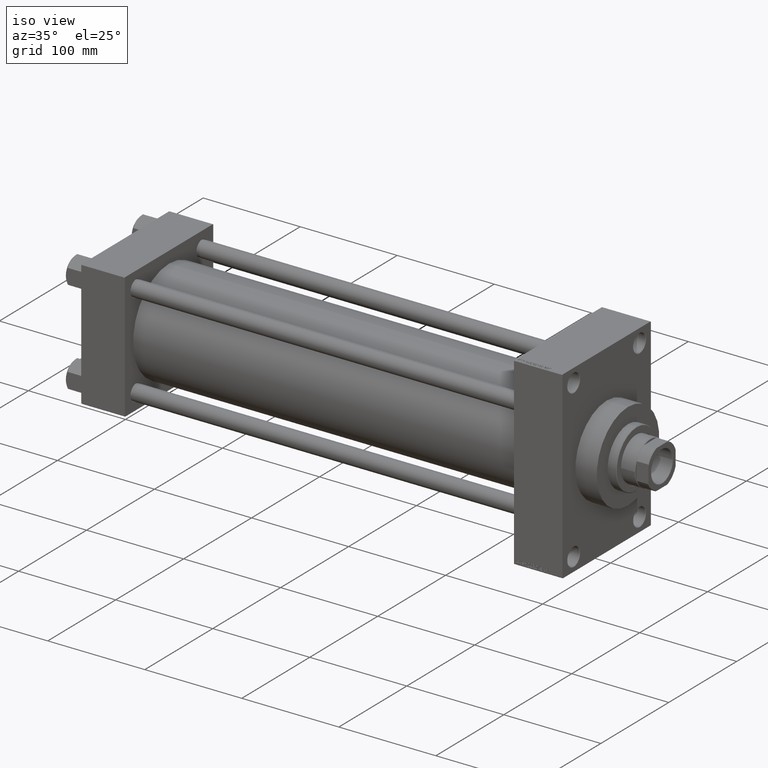
[diagram: clean part render]
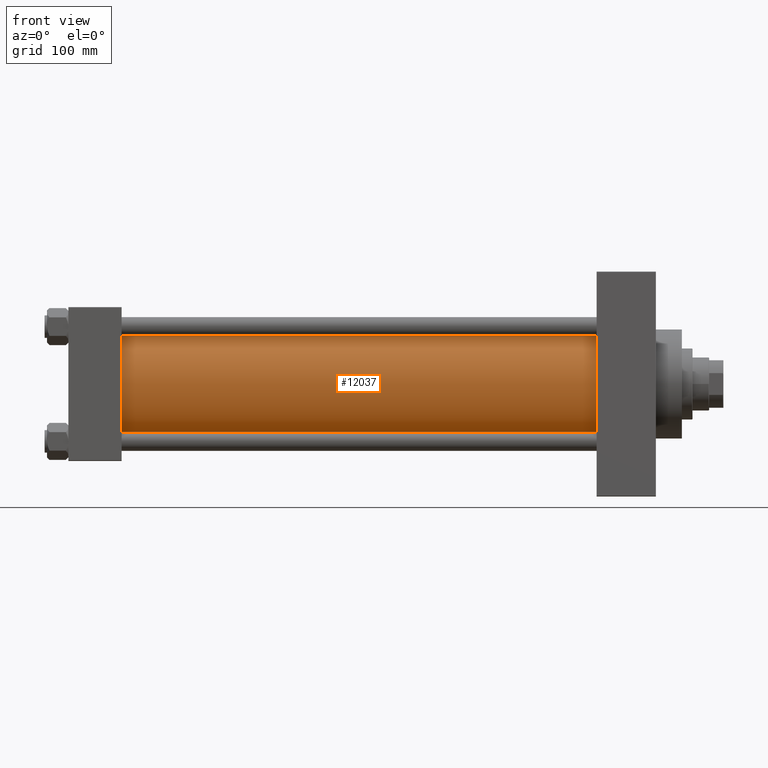
[diagram: tour spotlight — one face highlighted and labeled with its STEP entity id]
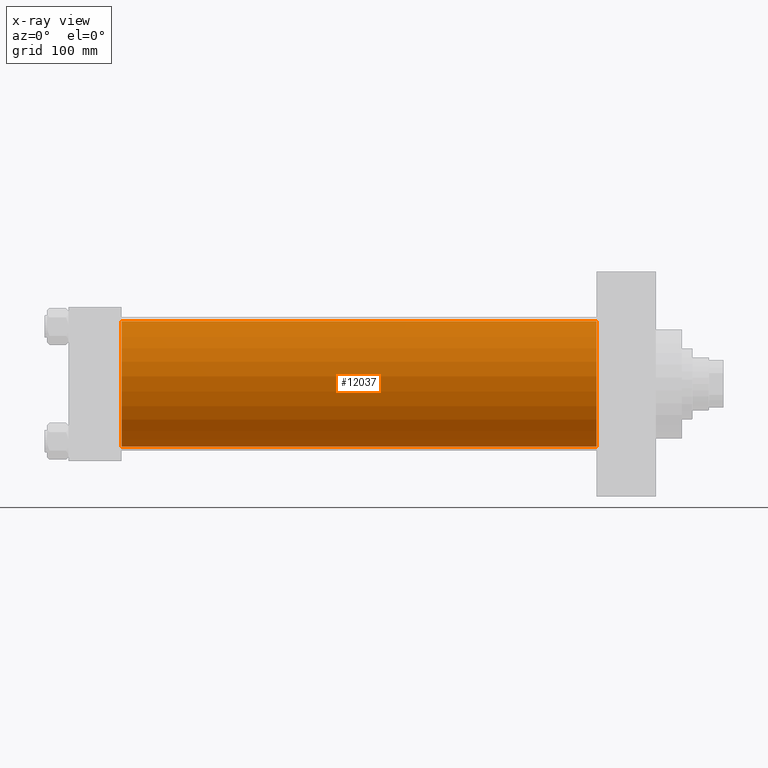
[diagram: x-ray of the same camera — body ghosted, this tour face saturated]
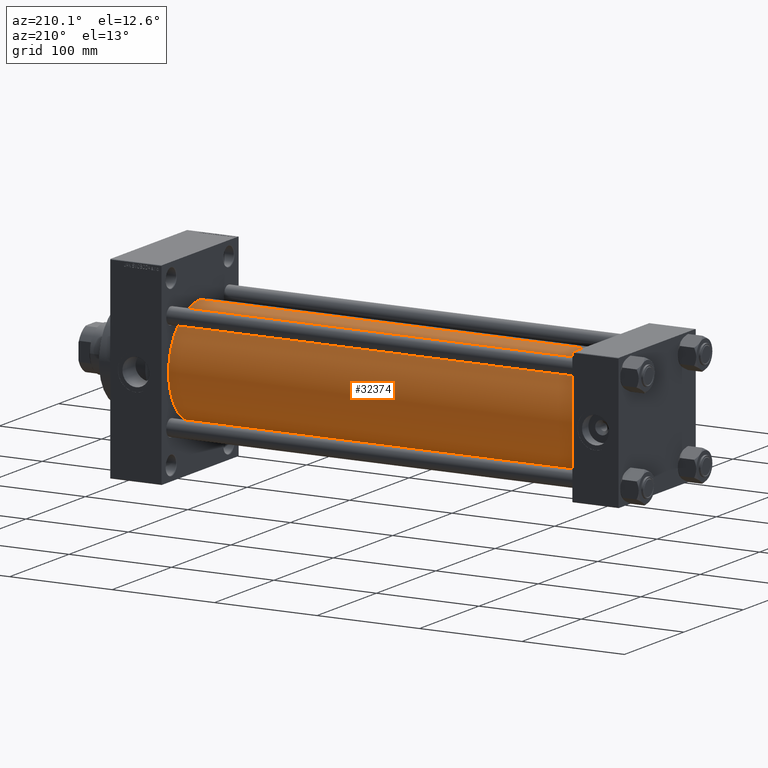
[diagram: tour spotlight — one face highlighted and labeled with its STEP entity id]
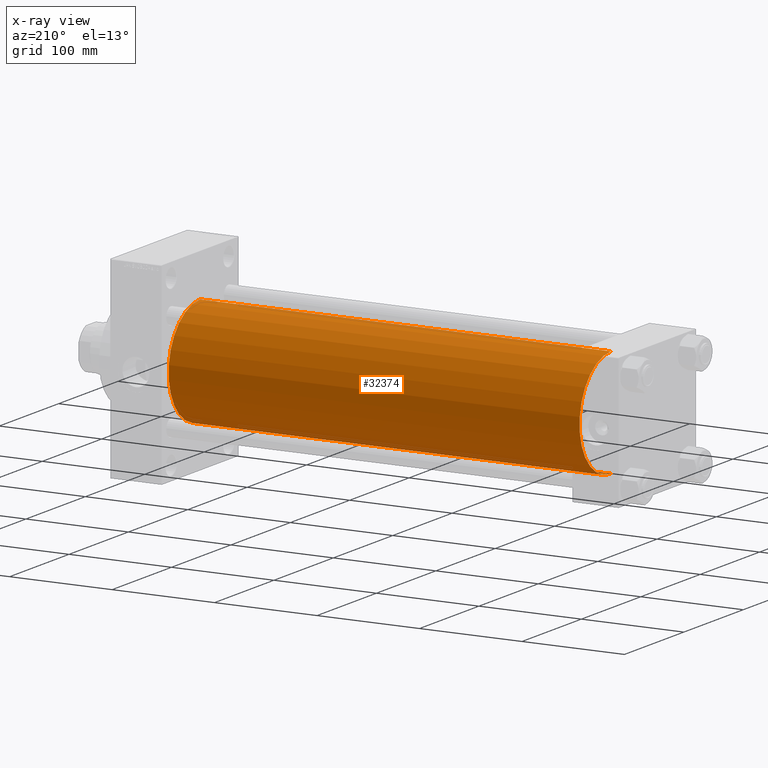
[diagram: x-ray of the same camera — body ghosted, this tour face saturated]
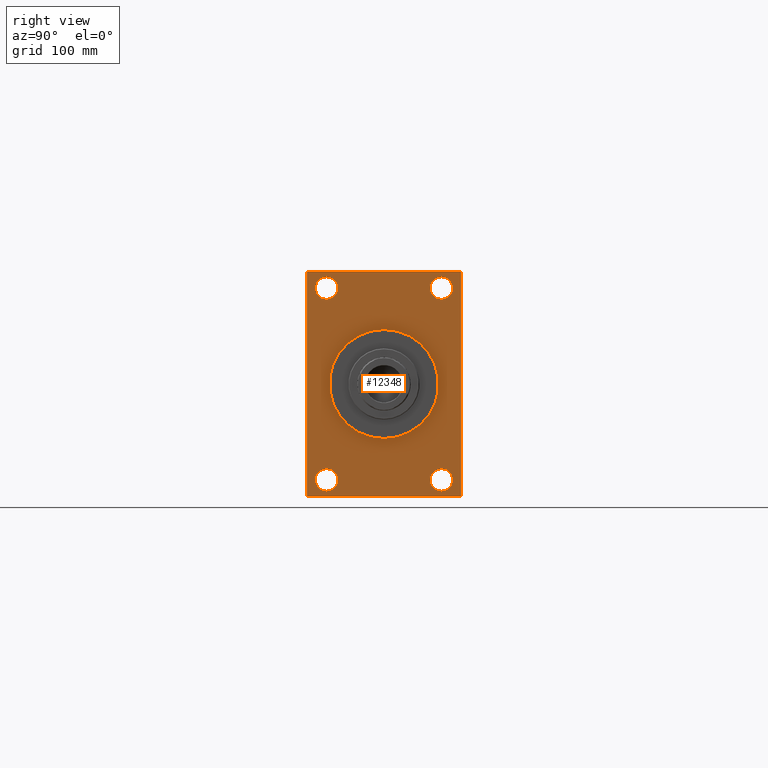
[diagram: tour spotlight — one face highlighted and labeled with its STEP entity id]
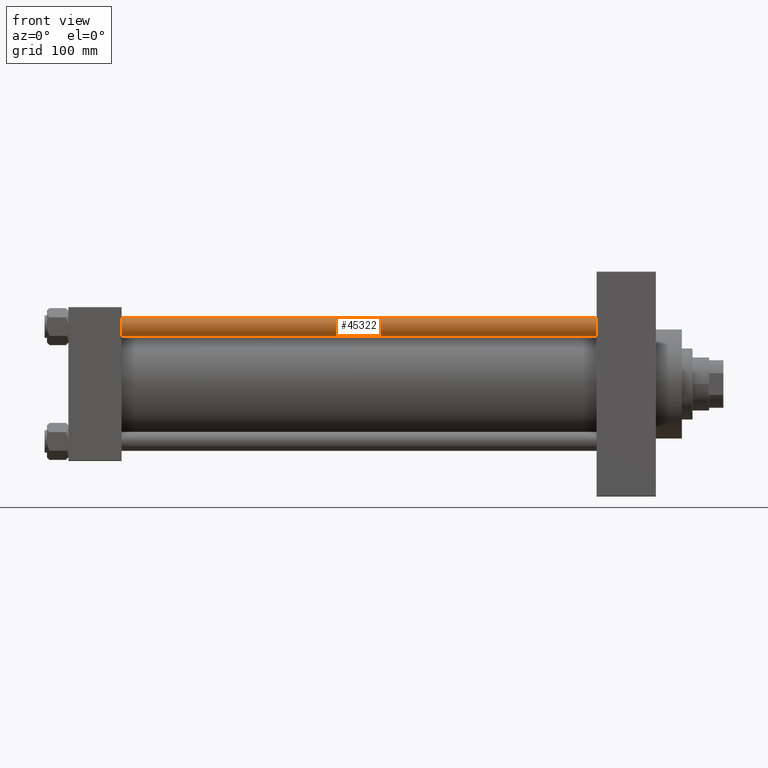
[diagram: tour spotlight — one face highlighted and labeled with its STEP entity id]
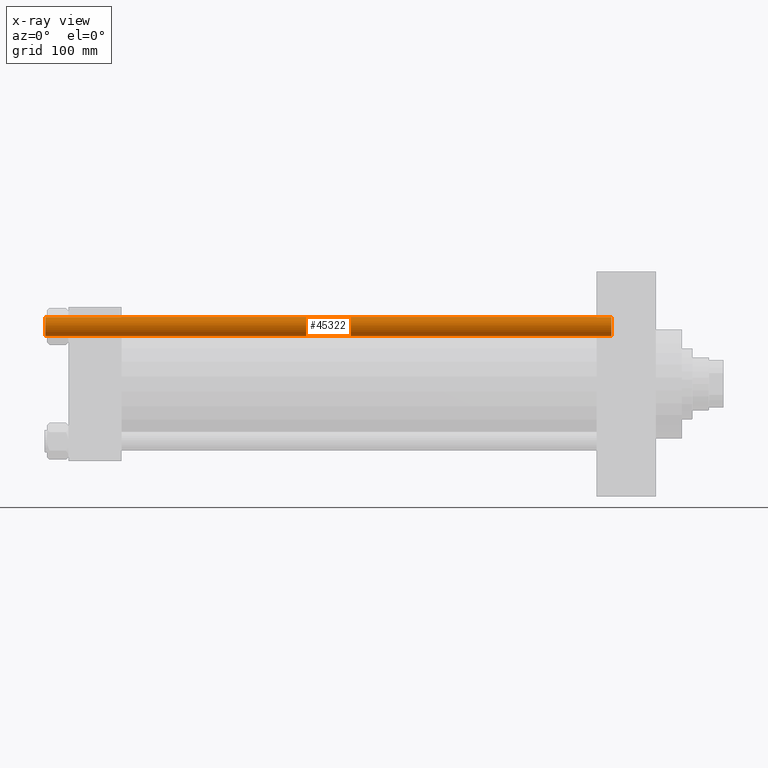
[diagram: x-ray of the same camera — body ghosted, this tour face saturated]
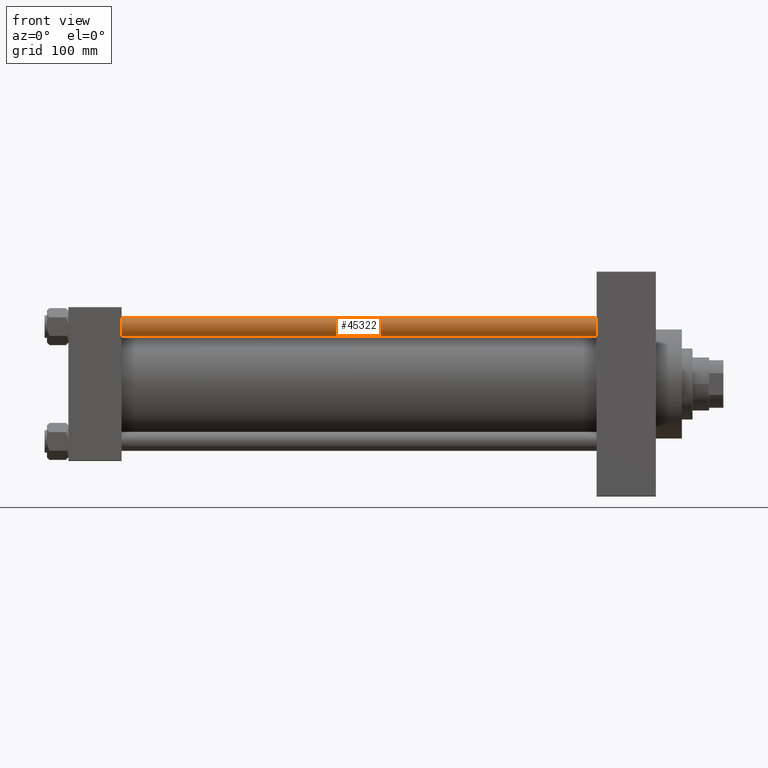
[diagram: tour spotlight — one face highlighted and labeled with its STEP entity id]
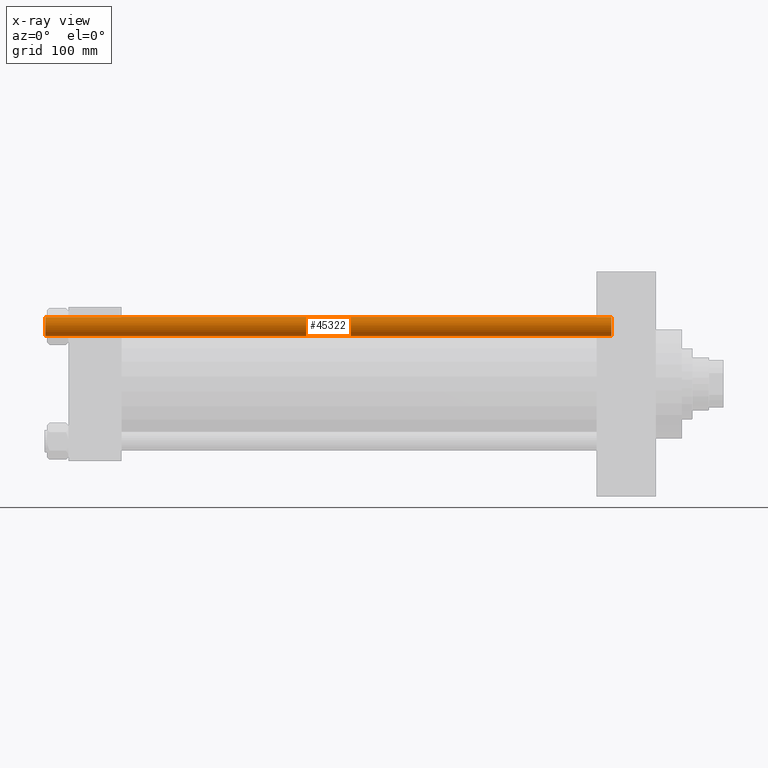
[diagram: x-ray of the same camera — body ghosted, this tour face saturated]
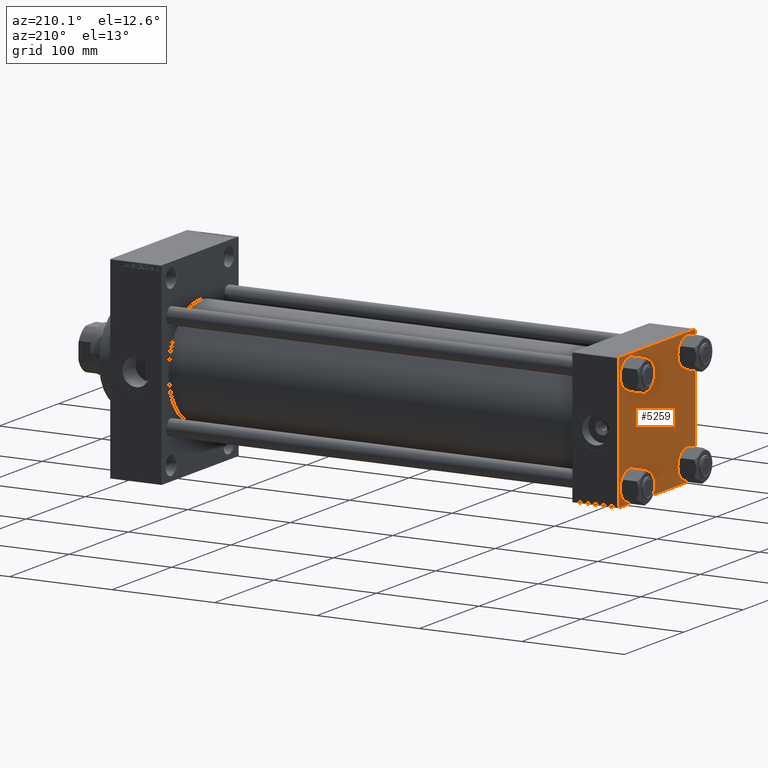
[diagram: tour spotlight — one face highlighted and labeled with its STEP entity id]
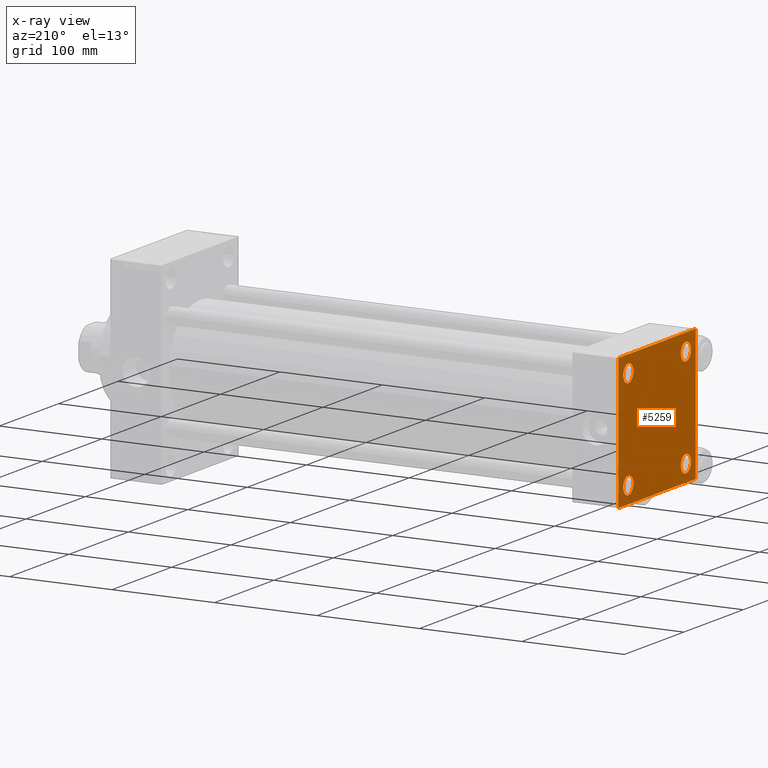
[diagram: x-ray of the same camera — body ghosted, this tour face saturated]
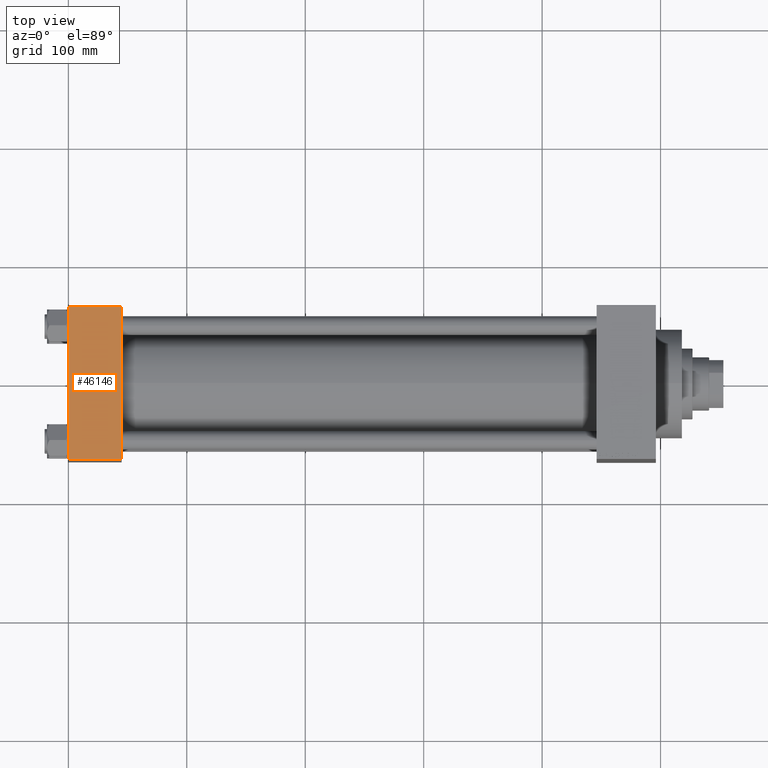
[diagram: tour spotlight — one face highlighted and labeled with its STEP entity id]
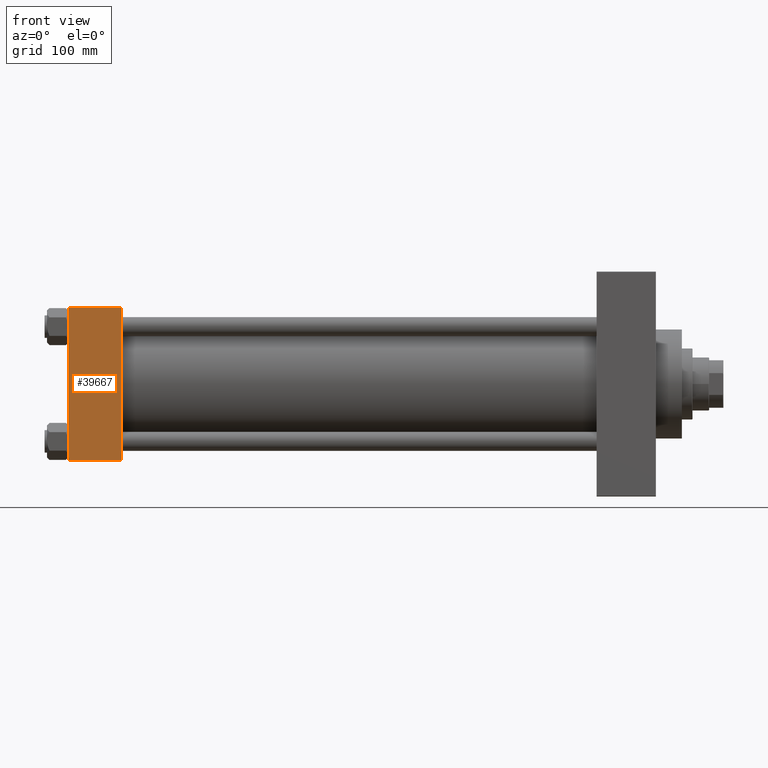
[diagram: tour spotlight — one face highlighted and labeled with its STEP entity id]
A machine part: a face-by-face anatomy tour. The part has 1152 B-rep faces; the first image is the clean iso view, then the 8 largest visible faces are spotlighted one at a time (largest first), each with its STEP entity span.

Face 1 — front view, entity #12037. An x-ray twin of the same camera follows (body ghosted, this face saturated) — the face is partly hidden behind the body. In plain terms, the highlighted cylindrical surface (partial cylindrical patch) has radius 53 mm, axis along (-1, -0, -0).
Definition (entity closure, byte-faithful):
#1668 = DIRECTION ( 'NONE',  ( -1.000000000000000000, -0.000000000000000000, -0.000000000000000000 ) ) ;
#3227 = CYLINDRICAL_SURFACE ( 'NONE', #38274, 53.00000000000000711 ) ;
#3472 = FACE_OUTER_BOUND ( 'NONE', #19214, .T. ) ;
#4217 = CARTESIAN_POINT ( 'NONE',  ( 446.0000000000000000, -2.602085213965210642E-15, 53.00000000000000711 ) ) ;
#6288 = EDGE_CURVE ( 'NONE', #19198, #28979, #31957, .T. ) ;
#6498 = AXIS2_PLACEMENT_3D ( 'NONE', #39335, #43195, #25105 ) ;
#6776 = CIRCLE ( 'NONE', #12182, 53.00000000000000711 ) ;
#8379 = EDGE_CURVE ( 'NONE', #28979, #27550, #21911, .T. ) ;
#11543 = CARTESIAN_POINT ( 'NONE',  ( 446.0000000000000000, -2.602085213965210642E-15, 0.000000000000000000 ) ) ;
#11733 = ORIENTED_EDGE ( 'NONE', *, *, #38024, .F. ) ;
#12037 = ADVANCED_FACE ( 'NONE', ( #3472 ), #3227, .T. ) ;
#12182 = AXIS2_PLACEMENT_3D ( 'NONE', #11543, #22610, #26465 ) ;
#12939 = CARTESIAN_POINT ( 'NONE',  ( 446.0000000000000000, -2.602085213965210642E-15, 53.00000000000000711 ) ) ;
#14083 = CARTESIAN_POINT ( 'NONE',  ( 446.0000000000000000, -2.602085213965210642E-15, 0.000000000000000000 ) ) ;
#14797 = DIRECTION ( 'NONE',  ( 0.000000000000000000, 0.000000000000000000, 1.000000000000000000 ) ) ;
#19198 = VERTEX_POINT ( 'NONE', #4217 ) ;
#19214 = EDGE_LOOP ( 'NONE', ( #40418, #11733, #34072, #30056 ) ) ;
#20639 = DIRECTION ( 'NONE',  ( -1.000000000000000000, -0.000000000000000000, -0.000000000000000000 ) ) ;
#21911 = CIRCLE ( 'NONE', #6498, 53.00000000000000711 ) ;
#22610 = DIRECTION ( 'NONE',  ( 1.000000000000000000, 0.000000000000000000, 0.000000000000000000 ) ) ;
#25105 = DIRECTION ( 'NONE',  ( 0.000000000000000000, 0.000000000000000000, 1.000000000000000000 ) ) ;
#25646 = DIRECTION ( 'NONE',  ( -1.000000000000000000, -0.000000000000000000, -0.000000000000000000 ) ) ;
#26465 = DIRECTION ( 'NONE',  ( 0.000000000000000000, 0.000000000000000000, -1.000000000000000000 ) ) ;
#27550 = VERTEX_POINT ( 'NONE', #33366 ) ;
#28417 = LINE ( 'NONE', #34693, #41556 ) ;
#28979 = VERTEX_POINT ( 'NONE', #38346 ) ;
#30056 = ORIENTED_EDGE ( 'NONE', *, *, #8379, .T. ) ;
#31932 = CARTESIAN_POINT ( 'NONE',  ( 446.0000000000000000, 3.888542821515760888E-15, -53.00000000000000711 ) ) ;
#31957 = LINE ( 'NONE', #12939, #41097 ) ;
#33366 = CARTESIAN_POINT ( 'NONE',  ( 44.99999999999998579, 3.888542821515760888E-15, -53.00000000000000711 ) ) ;
#34072 = ORIENTED_EDGE ( 'NONE', *, *, #6288, .T. ) ;
#34693 = CARTESIAN_POINT ( 'NONE',  ( 446.0000000000000000, 3.888542821515760888E-15, -53.00000000000000711 ) ) ;
#38024 = EDGE_CURVE ( 'NONE', #19198, #42041, #6776, .T. ) ;
#38274 = AXIS2_PLACEMENT_3D ( 'NONE', #14083, #25646, #14797 ) ;
#38346 = CARTESIAN_POINT ( 'NONE',  ( 44.99999999999998579, -2.602085213965210642E-15, 53.00000000000000711 ) ) ;
#39335 = CARTESIAN_POINT ( 'NONE',  ( 44.99999999999998579, -2.602085213965210642E-15, 0.000000000000000000 ) ) ;
#40418 = ORIENTED_EDGE ( 'NONE', *, *, #47662, .F. ) ;
#41097 = VECTOR ( 'NONE', #20639, 1000.000000000000000 ) ;
#41556 = VECTOR ( 'NONE', #1668, 1000.000000000000000 ) ;
#42041 = VERTEX_POINT ( 'NONE', #31932 ) ;
#43195 = DIRECTION ( 'NONE',  ( 1.000000000000000000, -0.000000000000000000, 0.000000000000000000 ) ) ;
#47662 = EDGE_CURVE ( 'NONE', #42041, #27550, #28417, .T. ) ;

Face 2 — auxiliary view, entity #32374. An x-ray twin of the same camera follows (body ghosted, this face saturated) — the face is partly hidden behind the body. In plain terms, the highlighted cylindrical surface (partial cylindrical patch) has radius 53 mm, axis along (-1, -0, -0).
Definition (entity closure, byte-faithful):
#1062 = DIRECTION ( 'NONE',  ( 0.000000000000000000, 0.000000000000000000, 1.000000000000000000 ) ) ;
#1668 = DIRECTION ( 'NONE',  ( -1.000000000000000000, -0.000000000000000000, -0.000000000000000000 ) ) ;
#4217 = CARTESIAN_POINT ( 'NONE',  ( 446.0000000000000000, -2.602085213965210642E-15, 53.00000000000000711 ) ) ;
#4383 = ORIENTED_EDGE ( 'NONE', *, *, #5472, .T. ) ;
#5472 = EDGE_CURVE ( 'NONE', #27550, #28979, #9499, .T. ) ;
#6288 = EDGE_CURVE ( 'NONE', #19198, #28979, #31957, .T. ) ;
#9499 = CIRCLE ( 'NONE', #27970, 53.00000000000000711 ) ;
#10031 = CARTESIAN_POINT ( 'NONE',  ( 44.99999999999998579, -2.602085213965210642E-15, 0.000000000000000000 ) ) ;
#10268 = DIRECTION ( 'NONE',  ( 1.000000000000000000, -0.000000000000000000, 0.000000000000000000 ) ) ;
#12939 = CARTESIAN_POINT ( 'NONE',  ( 446.0000000000000000, -2.602085213965210642E-15, 53.00000000000000711 ) ) ;
#15520 = FACE_OUTER_BOUND ( 'NONE', #21065, .T. ) ;
#15755 = DIRECTION ( 'NONE',  ( -1.000000000000000000, -0.000000000000000000, -0.000000000000000000 ) ) ;
#15789 = AXIS2_PLACEMENT_3D ( 'NONE', #20494, #38580, #27719 ) ;
#16699 = ORIENTED_EDGE ( 'NONE', *, *, #47662, .T. ) ;
#19198 = VERTEX_POINT ( 'NONE', #4217 ) ;
#19686 = AXIS2_PLACEMENT_3D ( 'NONE', #34076, #15755, #1062 ) ;
#20494 = CARTESIAN_POINT ( 'NONE',  ( 446.0000000000000000, -2.602085213965210642E-15, 0.000000000000000000 ) ) ;
#20639 = DIRECTION ( 'NONE',  ( -1.000000000000000000, -0.000000000000000000, -0.000000000000000000 ) ) ;
#21065 = EDGE_LOOP ( 'NONE', ( #23375, #16699, #4383, #37810 ) ) ;
#23375 = ORIENTED_EDGE ( 'NONE', *, *, #27898, .F. ) ;
#27550 = VERTEX_POINT ( 'NONE', #33366 ) ;
#27719 = DIRECTION ( 'NONE',  ( 0.000000000000000000, 0.000000000000000000, -1.000000000000000000 ) ) ;
#27898 = EDGE_CURVE ( 'NONE', #42041, #19198, #31181, .T. ) ;
#27970 = AXIS2_PLACEMENT_3D ( 'NONE', #10031, #10268, #47386 ) ;
#28417 = LINE ( 'NONE', #34693, #41556 ) ;
#28979 = VERTEX_POINT ( 'NONE', #38346 ) ;
#30228 = CYLINDRICAL_SURFACE ( 'NONE', #19686, 53.00000000000000711 ) ;
#31181 = CIRCLE ( 'NONE', #15789, 53.00000000000000711 ) ;
#31932 = CARTESIAN_POINT ( 'NONE',  ( 446.0000000000000000, 3.888542821515760888E-15, -53.00000000000000711 ) ) ;
#31957 = LINE ( 'NONE', #12939, #41097 ) ;
#32374 = ADVANCED_FACE ( 'NONE', ( #15520 ), #30228, .T. ) ;
#33366 = CARTESIAN_POINT ( 'NONE',  ( 44.99999999999998579, 3.888542821515760888E-15, -53.00000000000000711 ) ) ;
#34076 = CARTESIAN_POINT ( 'NONE',  ( 446.0000000000000000, -2.602085213965210642E-15, 0.000000000000000000 ) ) ;
#34693 = CARTESIAN_POINT ( 'NONE',  ( 446.0000000000000000, 3.888542821515760888E-15, -53.00000000000000711 ) ) ;
#37810 = ORIENTED_EDGE ( 'NONE', *, *, #6288, .F. ) ;
#38346 = CARTESIAN_POINT ( 'NONE',  ( 44.99999999999998579, -2.602085213965210642E-15, 53.00000000000000711 ) ) ;
#38580 = DIRECTION ( 'NONE',  ( 1.000000000000000000, 0.000000000000000000, 0.000000000000000000 ) ) ;
#41097 = VECTOR ( 'NONE', #20639, 1000.000000000000000 ) ;
#41556 = VECTOR ( 'NONE', #1668, 1000.000000000000000 ) ;
#42041 = VERTEX_POINT ( 'NONE', #31932 ) ;
#47386 = DIRECTION ( 'NONE',  ( 0.000000000000000000, 0.000000000000000000, 1.000000000000000000 ) ) ;
#47662 = EDGE_CURVE ( 'NONE', #42041, #27550, #28417, .T. ) ;

Face 3 — right view, entity #12348. In plain terms, the highlighted planar face has unit normal (-1, 0, 0).
Definition (entity closure, byte-faithful):
#569 = CARTESIAN_POINT ( 'NONE',  ( 496.0000000000000000, 0.000000000000000000, 46.00000000000000000 ) ) ;
#635 = LINE ( 'NONE', #8110, #7314 ) ;
#720 = CIRCLE ( 'NONE', #36924, 9.499999999999896971 ) ;
#992 = VERTEX_POINT ( 'NONE', #45209 ) ;
#1355 = DIRECTION ( 'NONE',  ( 0.000000000000000000, 0.000000000000000000, 1.000000000000000000 ) ) ;
#1360 = DIRECTION ( 'NONE',  ( 0.000000000000000000, 0.000000000000000000, -1.000000000000000000 ) ) ;
#2428 = EDGE_CURVE ( 'NONE', #8443, #4389, #30306, .T. ) ;
#3208 = CIRCLE ( 'NONE', #15523, 46.00000000000000000 ) ;
#3388 = ORIENTED_EDGE ( 'NONE', *, *, #2428, .T. ) ;
#3421 = DIRECTION ( 'NONE',  ( -1.000000000000000000, 0.000000000000000000, -0.000000000000000000 ) ) ;
#3604 = EDGE_LOOP ( 'NONE', ( #12897, #5449 ) ) ;
#3742 = CARTESIAN_POINT ( 'NONE',  ( 496.0000000000000000, -64.50000000000000000, 94.99999999999998579 ) ) ;
#4389 = VERTEX_POINT ( 'NONE', #45092 ) ;
#4425 = VERTEX_POINT ( 'NONE', #11066 ) ;
#4721 = EDGE_CURVE ( 'NONE', #42272, #4425, #16171, .T. ) ;
#5375 = EDGE_CURVE ( 'NONE', #12055, #37248, #28727, .T. ) ;
#5449 = ORIENTED_EDGE ( 'NONE', *, *, #30560, .T. ) ;
#5844 = VERTEX_POINT ( 'NONE', #21945 ) ;
#6008 = AXIS2_PLACEMENT_3D ( 'NONE', #26774, #30623, #42187 ) ;
#6095 = ORIENTED_EDGE ( 'NONE', *, *, #16735, .F. ) ;
#6836 = AXIS2_PLACEMENT_3D ( 'NONE', #23295, #27614, #1355 ) ;
#7314 = VECTOR ( 'NONE', #15339, 1000.000000000000114 ) ;
#7443 = AXIS2_PLACEMENT_3D ( 'NONE', #7487, #40984, #15188 ) ;
#7487 = CARTESIAN_POINT ( 'NONE',  ( 496.0000000000000000, 48.50000000000000000, 81.00000000000000000 ) ) ;
#8110 = CARTESIAN_POINT ( 'NONE',  ( 496.0000000000000000, -64.50000000000005684, -95.00000000000002842 ) ) ;
#8239 = VERTEX_POINT ( 'NONE', #569 ) ;
#8443 = VERTEX_POINT ( 'NONE', #35963 ) ;
#9125 = DIRECTION ( 'NONE',  ( 0.000000000000000000, 0.000000000000000000, 1.000000000000000000 ) ) ;
#9413 = LINE ( 'NONE', #38815, #27010 ) ;
#9518 = DIRECTION ( 'NONE',  ( 0.000000000000000000, 0.000000000000000000, -1.000000000000000000 ) ) ;
#9939 = CIRCLE ( 'NONE', #6836, 9.499999999999896971 ) ;
#10605 = VERTEX_POINT ( 'NONE', #32745 ) ;
#10669 = EDGE_CURVE ( 'NONE', #10605, #19840, #18522, .T. ) ;
#11066 = CARTESIAN_POINT ( 'NONE',  ( 496.0000000000000000, 65.00000000000000000, -94.50000000000008527 ) ) ;
#11224 = VECTOR ( 'NONE', #14661, 1000.000000000000000 ) ;
#11238 = EDGE_LOOP ( 'NONE', ( #3388, #46899, #18649, #22008, #14039, #17523, #30452, #25350 ) ) ;
#11640 = CARTESIAN_POINT ( 'NONE',  ( 496.0000000000000000, 65.00000000000000000, 95.00000000000000000 ) ) ;
#12055 = VERTEX_POINT ( 'NONE', #17455 ) ;
#12261 = DIRECTION ( 'NONE',  ( -1.000000000000000000, -0.000000000000000000, -0.000000000000000000 ) ) ;
#12348 = ADVANCED_FACE ( 'NONE', ( #36201, #28481, #17398, #39820, #46576, #21973 ), #21729, .F. ) ;
#12897 = ORIENTED_EDGE ( 'NONE', *, *, #45700, .T. ) ;
#13127 = CARTESIAN_POINT ( 'NONE',  ( 496.0000000000000000, 0.000000000000000000, 0.000000000000000000 ) ) ;
#13594 = DIRECTION ( 'NONE',  ( -1.000000000000000000, -0.000000000000000000, -0.000000000000000000 ) ) ;
#13974 = LINE ( 'NONE', #17351, #36019 ) ;
#14039 = ORIENTED_EDGE ( 'NONE', *, *, #4721, .F. ) ;
#14661 = DIRECTION ( 'NONE',  ( 0.000000000000000000, -1.000000000000000000, -1.067522139062650425E-16 ) ) ;
#15188 = DIRECTION ( 'NONE',  ( 0.000000000000000000, 0.000000000000000000, 1.000000000000000000 ) ) ;
#15246 = CIRCLE ( 'NONE', #6008, 9.499999999999896971 ) ;
#15339 = DIRECTION ( 'NONE',  ( 0.000000000000000000, 0.7071067811865376918, -0.7071067811865573427 ) ) ;
#15523 = AXIS2_PLACEMENT_3D ( 'NONE', #25379, #28995, #22239 ) ;
#15869 = CARTESIAN_POINT ( 'NONE',  ( 496.0000000000000000, -48.50000000000000000, 81.00000000000000000 ) ) ;
#16171 = LINE ( 'NONE', #11640, #16361 ) ;
#16291 = DIRECTION ( 'NONE',  ( -1.000000000000000000, -0.000000000000000000, -0.000000000000000000 ) ) ;
#16361 = VECTOR ( 'NONE', #26560, 1000.000000000000000 ) ;
#16526 = CARTESIAN_POINT ( 'NONE',  ( 496.0000000000000000, -48.50000000000000000, 90.49999999999990052 ) ) ;
#16735 = EDGE_CURVE ( 'NONE', #8239, #16829, #43275, .T. ) ;
#16813 = VERTEX_POINT ( 'NONE', #33353 ) ;
#16829 = VERTEX_POINT ( 'NONE', #22494 ) ;
#17216 = ORIENTED_EDGE ( 'NONE', *, *, #33841, .T. ) ;
#17351 = CARTESIAN_POINT ( 'NONE',  ( 496.0000000000000000, -65.00000000000000000, 94.49999999999998579 ) ) ;
#17398 = FACE_BOUND ( 'NONE', #19484, .T. ) ;
#17455 = CARTESIAN_POINT ( 'NONE',  ( 496.0000000000000000, 48.50000000000000000, -90.49999999999990052 ) ) ;
#17523 = ORIENTED_EDGE ( 'NONE', *, *, #18387, .T. ) ;
#17795 = CARTESIAN_POINT ( 'NONE',  ( 496.0000000000000000, 48.50000000000000000, -71.50000000000009948 ) ) ;
#17858 = VECTOR ( 'NONE', #1360, 1000.000000000000000 ) ;
#18387 = EDGE_CURVE ( 'NONE', #42272, #10605, #9413, .T. ) ;
#18441 = CARTESIAN_POINT ( 'NONE',  ( 496.0000000000000000, -48.50000000000000000, 71.50000000000009948 ) ) ;
#18522 = LINE ( 'NONE', #21892, #11224 ) ;
#18649 = ORIENTED_EDGE ( 'NONE', *, *, #25945, .F. ) ;
#18955 = ORIENTED_EDGE ( 'NONE', *, *, #43251, .T. ) ;
#19309 = EDGE_CURVE ( 'NONE', #16829, #8239, #3208, .T. ) ;
#19377 = CARTESIAN_POINT ( 'NONE',  ( 496.0000000000000000, -64.50000000000005684, -95.00000000000002842 ) ) ;
#19484 = EDGE_LOOP ( 'NONE', ( #39880, #26705 ) ) ;
#19840 = VERTEX_POINT ( 'NONE', #3742 ) ;
#20262 = CARTESIAN_POINT ( 'NONE',  ( 496.0000000000000000, 65.00000000000000000, 94.50000000000005684 ) ) ;
#20899 = ORIENTED_EDGE ( 'NONE', *, *, #19309, .F. ) ;
#21017 = DIRECTION ( 'NONE',  ( -1.000000000000000000, -0.000000000000000000, -0.000000000000000000 ) ) ;
#21569 = VECTOR ( 'NONE', #37628, 1000.000000000000114 ) ;
#21715 = AXIS2_PLACEMENT_3D ( 'NONE', #13127, #42537, #9518 ) ;
#21729 = PLANE ( 'NONE',  #29823 ) ;
#21806 = DIRECTION ( 'NONE',  ( -1.000000000000000000, -0.000000000000000000, -0.000000000000000000 ) ) ;
#21892 = CARTESIAN_POINT ( 'NONE',  ( 496.0000000000000000, 65.00000000000000000, 95.00000000000000000 ) ) ;
#21945 = CARTESIAN_POINT ( 'NONE',  ( 496.0000000000000000, 48.50000000000000000, 71.50000000000009948 ) ) ;
#21973 = FACE_OUTER_BOUND ( 'NONE', #11238, .T. ) ;
#22008 = ORIENTED_EDGE ( 'NONE', *, *, #40428, .T. ) ;
#22239 = DIRECTION ( 'NONE',  ( 0.000000000000000000, 0.000000000000000000, -1.000000000000000000 ) ) ;
#22351 = EDGE_CURVE ( 'NONE', #37248, #12055, #24085, .T. ) ;
#22494 = CARTESIAN_POINT ( 'NONE',  ( 496.0000000000000000, 5.633375276077824704E-15, -46.00000000000000000 ) ) ;
#22819 = AXIS2_PLACEMENT_3D ( 'NONE', #24879, #21017, #46342 ) ;
#22970 = AXIS2_PLACEMENT_3D ( 'NONE', #15869, #12261, #9125 ) ;
#23145 = CARTESIAN_POINT ( 'NONE',  ( 496.0000000000000000, 65.00000000000000000, -94.50000000000008527 ) ) ;
#23295 = CARTESIAN_POINT ( 'NONE',  ( 496.0000000000000000, -48.50000000000000000, -81.00000000000000000 ) ) ;
#24085 = CIRCLE ( 'NONE', #44903, 9.499999999999896971 ) ;
#24879 = CARTESIAN_POINT ( 'NONE',  ( 496.0000000000000000, -48.50000000000000000, -81.00000000000000000 ) ) ;
#25350 = ORIENTED_EDGE ( 'NONE', *, *, #44251, .T. ) ;
#25379 = CARTESIAN_POINT ( 'NONE',  ( 496.0000000000000000, 0.000000000000000000, 0.000000000000000000 ) ) ;
#25904 = DIRECTION ( 'NONE',  ( 0.000000000000000000, 0.000000000000000000, 1.000000000000000000 ) ) ;
#25945 = EDGE_CURVE ( 'NONE', #992, #40234, #39237, .T. ) ;
#26172 = EDGE_LOOP ( 'NONE', ( #17216, #41610 ) ) ;
#26560 = DIRECTION ( 'NONE',  ( 0.000000000000000000, 0.000000000000000000, -1.000000000000000000 ) ) ;
#26562 = CIRCLE ( 'NONE', #22819, 9.499999999999896971 ) ;
#26705 = ORIENTED_EDGE ( 'NONE', *, *, #22351, .T. ) ;
#26774 = CARTESIAN_POINT ( 'NONE',  ( 496.0000000000000000, -48.50000000000000000, 81.00000000000000000 ) ) ;
#27010 = VECTOR ( 'NONE', #46054, 1000.000000000000114 ) ;
#27193 = EDGE_CURVE ( 'NONE', #4389, #40234, #635, .T. ) ;
#27614 = DIRECTION ( 'NONE',  ( -1.000000000000000000, -0.000000000000000000, -0.000000000000000000 ) ) ;
#28481 = FACE_BOUND ( 'NONE', #3604, .T. ) ;
#28727 = CIRCLE ( 'NONE', #37200, 9.499999999999896971 ) ;
#28995 = DIRECTION ( 'NONE',  ( 1.000000000000000000, 0.000000000000000000, 0.000000000000000000 ) ) ;
#29514 = CARTESIAN_POINT ( 'NONE',  ( 496.0000000000000000, 48.50000000000000000, -81.00000000000000000 ) ) ;
#29823 = AXIS2_PLACEMENT_3D ( 'NONE', #36449, #3421, #39583 ) ;
#30306 = LINE ( 'NONE', #38007, #17858 ) ;
#30452 = ORIENTED_EDGE ( 'NONE', *, *, #10669, .T. ) ;
#30560 = EDGE_CURVE ( 'NONE', #38256, #33116, #26562, .T. ) ;
#30623 = DIRECTION ( 'NONE',  ( -1.000000000000000000, -0.000000000000000000, -0.000000000000000000 ) ) ;
#31524 = CARTESIAN_POINT ( 'NONE',  ( 496.0000000000000000, 65.00000000000000000, -95.00000000000002842 ) ) ;
#32745 = CARTESIAN_POINT ( 'NONE',  ( 496.0000000000000000, 64.50000000000005684, 95.00000000000000000 ) ) ;
#33116 = VERTEX_POINT ( 'NONE', #46423 ) ;
#33353 = CARTESIAN_POINT ( 'NONE',  ( 496.0000000000000000, 48.50000000000000000, 90.49999999999990052 ) ) ;
#33841 = EDGE_CURVE ( 'NONE', #5844, #16813, #45902, .T. ) ;
#33882 = EDGE_LOOP ( 'NONE', ( #6095, #20899 ) ) ;
#34862 = DIRECTION ( 'NONE',  ( 0.000000000000000000, 0.000000000000000000, 1.000000000000000000 ) ) ;
#35056 = DIRECTION ( 'NONE',  ( 0.000000000000000000, 0.000000000000000000, 1.000000000000000000 ) ) ;
#35963 = CARTESIAN_POINT ( 'NONE',  ( 496.0000000000000000, -65.00000000000000000, 94.49999999999998579 ) ) ;
#36019 = VECTOR ( 'NONE', #46771, 1000.000000000000114 ) ;
#36201 = FACE_BOUND ( 'NONE', #36350, .T. ) ;
#36350 = EDGE_LOOP ( 'NONE', ( #41575, #18955 ) ) ;
#36449 = CARTESIAN_POINT ( 'NONE',  ( 496.0000000000000000, 0.000000000000000000, 0.000000000000000000 ) ) ;
#36519 = VECTOR ( 'NONE', #46713, 1000.000000000000000 ) ;
#36924 = AXIS2_PLACEMENT_3D ( 'NONE', #46618, #13594, #35056 ) ;
#37200 = AXIS2_PLACEMENT_3D ( 'NONE', #45956, #16291, #34862 ) ;
#37248 = VERTEX_POINT ( 'NONE', #17795 ) ;
#37628 = DIRECTION ( 'NONE',  ( -0.000000000000000000, 0.7071067811865474617, 0.7071067811865474617 ) ) ;
#37735 = CARTESIAN_POINT ( 'NONE',  ( 496.0000000000000000, -48.50000000000000000, -71.50000000000009948 ) ) ;
#38007 = CARTESIAN_POINT ( 'NONE',  ( 496.0000000000000000, -65.00000000000000000, 94.99999999999998579 ) ) ;
#38256 = VERTEX_POINT ( 'NONE', #37735 ) ;
#38815 = CARTESIAN_POINT ( 'NONE',  ( 496.0000000000000000, 64.50000000000005684, 95.00000000000000000 ) ) ;
#39237 = LINE ( 'NONE', #31524, #36519 ) ;
#39583 = DIRECTION ( 'NONE',  ( -0.000000000000000000, 0.000000000000000000, 1.000000000000000000 ) ) ;
#39820 = FACE_BOUND ( 'NONE', #26172, .T. ) ;
#39880 = ORIENTED_EDGE ( 'NONE', *, *, #5375, .T. ) ;
#40234 = VERTEX_POINT ( 'NONE', #19377 ) ;
#40428 = EDGE_CURVE ( 'NONE', #992, #4425, #40536, .T. ) ;
#40536 = LINE ( 'NONE', #23145, #21569 ) ;
#40984 = DIRECTION ( 'NONE',  ( -1.000000000000000000, -0.000000000000000000, -0.000000000000000000 ) ) ;
#41575 = ORIENTED_EDGE ( 'NONE', *, *, #44463, .T. ) ;
#41610 = ORIENTED_EDGE ( 'NONE', *, *, #46950, .T. ) ;
#42187 = DIRECTION ( 'NONE',  ( 0.000000000000000000, 0.000000000000000000, 1.000000000000000000 ) ) ;
#42272 = VERTEX_POINT ( 'NONE', #20262 ) ;
#42537 = DIRECTION ( 'NONE',  ( 1.000000000000000000, 0.000000000000000000, 0.000000000000000000 ) ) ;
#42917 = VERTEX_POINT ( 'NONE', #16526 ) ;
#43251 = EDGE_CURVE ( 'NONE', #42917, #45998, #15246, .T. ) ;
#43275 = CIRCLE ( 'NONE', #21715, 46.00000000000000000 ) ;
#43775 = CIRCLE ( 'NONE', #22970, 9.499999999999896971 ) ;
#44251 = EDGE_CURVE ( 'NONE', #19840, #8443, #13974, .T. ) ;
#44463 = EDGE_CURVE ( 'NONE', #45998, #42917, #43775, .T. ) ;
#44903 = AXIS2_PLACEMENT_3D ( 'NONE', #29514, #21806, #25904 ) ;
#45092 = CARTESIAN_POINT ( 'NONE',  ( 496.0000000000000000, -65.00000000000000000, -94.50000000000007105 ) ) ;
#45209 = CARTESIAN_POINT ( 'NONE',  ( 496.0000000000000000, 64.50000000000005684, -95.00000000000002842 ) ) ;
#45700 = EDGE_CURVE ( 'NONE', #33116, #38256, #9939, .T. ) ;
#45902 = CIRCLE ( 'NONE', #7443, 9.499999999999896971 ) ;
#45956 = CARTESIAN_POINT ( 'NONE',  ( 496.0000000000000000, 48.50000000000000000, -81.00000000000000000 ) ) ;
#45998 = VERTEX_POINT ( 'NONE', #18441 ) ;
#46054 = DIRECTION ( 'NONE',  ( 0.000000000000000000, -0.7071067811865474617, 0.7071067811865474617 ) ) ;
#46342 = DIRECTION ( 'NONE',  ( 0.000000000000000000, 0.000000000000000000, 1.000000000000000000 ) ) ;
#46423 = CARTESIAN_POINT ( 'NONE',  ( 496.0000000000000000, -48.50000000000000000, -90.49999999999990052 ) ) ;
#46576 = FACE_BOUND ( 'NONE', #33882, .T. ) ;
#46618 = CARTESIAN_POINT ( 'NONE',  ( 496.0000000000000000, 48.50000000000000000, 81.00000000000000000 ) ) ;
#46713 = DIRECTION ( 'NONE',  ( 0.000000000000000000, -1.000000000000000000, 0.000000000000000000 ) ) ;
#46771 = DIRECTION ( 'NONE',  ( -0.000000000000000000, -0.7071067811865474617, -0.7071067811865474617 ) ) ;
#46899 = ORIENTED_EDGE ( 'NONE', *, *, #27193, .T. ) ;
#46950 = EDGE_CURVE ( 'NONE', #16813, #5844, #720, .T. ) ;

Face 4 — front view, entity #45322. An x-ray twin of the same camera follows (body ghosted, this face saturated) — the face is partly hidden behind the body. In plain terms, the highlighted cylindrical surface (edge-blend (fillet) strip) has radius 8 mm, axis along (1, 0, 0).
Definition (entity closure, byte-faithful):
#2197 = ORIENTED_EDGE ( 'NONE', *, *, #9953, .T. ) ;
#3674 = VERTEX_POINT ( 'NONE', #8795 ) ;
#4866 = CIRCLE ( 'NONE', #46430, 8.000000000000000000 ) ;
#5034 = DIRECTION ( 'NONE',  ( -0.000000000000000000, -0.000000000000000000, -1.000000000000000000 ) ) ;
#5969 = DIRECTION ( 'NONE',  ( -0.000000000000000000, -0.000000000000000000, -1.000000000000000000 ) ) ;
#6754 = VERTEX_POINT ( 'NONE', #20762 ) ;
#6929 = DIRECTION ( 'NONE',  ( -0.000000000000000000, -0.000000000000000000, -1.000000000000000000 ) ) ;
#7550 = DIRECTION ( 'NONE',  ( -0.000000000000000000, -0.000000000000000000, 1.000000000000000000 ) ) ;
#7905 = AXIS2_PLACEMENT_3D ( 'NONE', #30427, #41989, #27272 ) ;
#8795 = CARTESIAN_POINT ( 'NONE',  ( 8.000000000000000000, 9.797174393178825657E-16, 0.5000000000000004441 ) ) ;
#9636 = VECTOR ( 'NONE', #6929, 1000.000000000000000 ) ;
#9953 = EDGE_CURVE ( 'NONE', #35859, #3674, #10068, .T. ) ;
#10068 = LINE ( 'NONE', #18013, #9636 ) ;
#11890 = VERTEX_POINT ( 'NONE', #23507 ) ;
#14666 = ORIENTED_EDGE ( 'NONE', *, *, #23380, .T. ) ;
#15012 = CARTESIAN_POINT ( 'NONE',  ( 0.000000000000000000, 0.000000000000000000, 0.5000000000000004441 ) ) ;
#16340 = CIRCLE ( 'NONE', #7905, 8.000000000000000000 ) ;
#17030 = ORIENTED_EDGE ( 'NONE', *, *, #20987, .T. ) ;
#18013 = CARTESIAN_POINT ( 'NONE',  ( 8.000000000000000000, 9.797174393178825657E-16, 479.0000000000000000 ) ) ;
#18873 = DIRECTION ( 'NONE',  ( 1.000000000000000000, 0.000000000000000000, 0.000000000000000000 ) ) ;
#20762 = CARTESIAN_POINT ( 'NONE',  ( -8.000000000000000000, 0.000000000000000000, 478.5000000000000000 ) ) ;
#20987 = EDGE_CURVE ( 'NONE', #6754, #35859, #16340, .T. ) ;
#23380 = EDGE_CURVE ( 'NONE', #3674, #11890, #4866, .T. ) ;
#23507 = CARTESIAN_POINT ( 'NONE',  ( -8.000000000000000000, 0.000000000000000000, 0.5000000000000004441 ) ) ;
#23574 = LINE ( 'NONE', #27425, #27580 ) ;
#27272 = DIRECTION ( 'NONE',  ( 1.000000000000000000, 0.000000000000000000, 0.000000000000000000 ) ) ;
#27425 = CARTESIAN_POINT ( 'NONE',  ( -8.000000000000000000, 0.000000000000000000, 479.0000000000000000 ) ) ;
#27580 = VECTOR ( 'NONE', #5969, 1000.000000000000000 ) ;
#30427 = CARTESIAN_POINT ( 'NONE',  ( 0.000000000000000000, 0.000000000000000000, 478.5000000000000000 ) ) ;
#34665 = DIRECTION ( 'NONE',  ( -1.000000000000000000, 0.000000000000000000, 0.000000000000000000 ) ) ;
#35859 = VERTEX_POINT ( 'NONE', #45891 ) ;
#36124 = EDGE_LOOP ( 'NONE', ( #17030, #2197, #14666, #46916 ) ) ;
#38292 = FACE_OUTER_BOUND ( 'NONE', #36124, .T. ) ;
#38772 = CYLINDRICAL_SURFACE ( 'NONE', #41498, 8.000000000000000000 ) ;
#41498 = AXIS2_PLACEMENT_3D ( 'NONE', #45303, #5034, #34665 ) ;
#41617 = EDGE_CURVE ( 'NONE', #6754, #11890, #23574, .T. ) ;
#41989 = DIRECTION ( 'NONE',  ( 0.000000000000000000, 0.000000000000000000, -1.000000000000000000 ) ) ;
#45303 = CARTESIAN_POINT ( 'NONE',  ( 0.000000000000000000, 0.000000000000000000, 479.0000000000000000 ) ) ;
#45322 = ADVANCED_FACE ( 'NONE', ( #38292 ), #38772, .T. ) ;
#45891 = CARTESIAN_POINT ( 'NONE',  ( 8.000000000000000000, 9.797174393178825657E-16, 478.5000000000000000 ) ) ;
#46430 = AXIS2_PLACEMENT_3D ( 'NONE', #15012, #7550, #18873 ) ;
#46916 = ORIENTED_EDGE ( 'NONE', *, *, #41617, .F. ) ;

Face 5 — front view, entity #45322. An x-ray twin of the same camera follows (body ghosted, this face saturated) — the face is partly hidden behind the body. In plain terms, the highlighted cylindrical surface (edge-blend (fillet) strip) has radius 8 mm, axis along (-1, 0, -0).
Definition (entity closure, byte-faithful):
#2197 = ORIENTED_EDGE ( 'NONE', *, *, #9953, .T. ) ;
#3674 = VERTEX_POINT ( 'NONE', #8795 ) ;
#4866 = CIRCLE ( 'NONE', #46430, 8.000000000000000000 ) ;
#5034 = DIRECTION ( 'NONE',  ( -0.000000000000000000, -0.000000000000000000, -1.000000000000000000 ) ) ;
#5969 = DIRECTION ( 'NONE',  ( -0.000000000000000000, -0.000000000000000000, -1.000000000000000000 ) ) ;
#6754 = VERTEX_POINT ( 'NONE', #20762 ) ;
#6929 = DIRECTION ( 'NONE',  ( -0.000000000000000000, -0.000000000000000000, -1.000000000000000000 ) ) ;
#7550 = DIRECTION ( 'NONE',  ( -0.000000000000000000, -0.000000000000000000, 1.000000000000000000 ) ) ;
#7905 = AXIS2_PLACEMENT_3D ( 'NONE', #30427, #41989, #27272 ) ;
#8795 = CARTESIAN_POINT ( 'NONE',  ( 8.000000000000000000, 9.797174393178825657E-16, 0.5000000000000004441 ) ) ;
#9636 = VECTOR ( 'NONE', #6929, 1000.000000000000000 ) ;
#9953 = EDGE_CURVE ( 'NONE', #35859, #3674, #10068, .T. ) ;
#10068 = LINE ( 'NONE', #18013, #9636 ) ;
#11890 = VERTEX_POINT ( 'NONE', #23507 ) ;
#14666 = ORIENTED_EDGE ( 'NONE', *, *, #23380, .T. ) ;
#15012 = CARTESIAN_POINT ( 'NONE',  ( 0.000000000000000000, 0.000000000000000000, 0.5000000000000004441 ) ) ;
#16340 = CIRCLE ( 'NONE', #7905, 8.000000000000000000 ) ;
#17030 = ORIENTED_EDGE ( 'NONE', *, *, #20987, .T. ) ;
#18013 = CARTESIAN_POINT ( 'NONE',  ( 8.000000000000000000, 9.797174393178825657E-16, 479.0000000000000000 ) ) ;
#18873 = DIRECTION ( 'NONE',  ( 1.000000000000000000, 0.000000000000000000, 0.000000000000000000 ) ) ;
#20762 = CARTESIAN_POINT ( 'NONE',  ( -8.000000000000000000, 0.000000000000000000, 478.5000000000000000 ) ) ;
#20987 = EDGE_CURVE ( 'NONE', #6754, #35859, #16340, .T. ) ;
#23380 = EDGE_CURVE ( 'NONE', #3674, #11890, #4866, .T. ) ;
#23507 = CARTESIAN_POINT ( 'NONE',  ( -8.000000000000000000, 0.000000000000000000, 0.5000000000000004441 ) ) ;
#23574 = LINE ( 'NONE', #27425, #27580 ) ;
#27272 = DIRECTION ( 'NONE',  ( 1.000000000000000000, 0.000000000000000000, 0.000000000000000000 ) ) ;
#27425 = CARTESIAN_POINT ( 'NONE',  ( -8.000000000000000000, 0.000000000000000000, 479.0000000000000000 ) ) ;
#27580 = VECTOR ( 'NONE', #5969, 1000.000000000000000 ) ;
#30427 = CARTESIAN_POINT ( 'NONE',  ( 0.000000000000000000, 0.000000000000000000, 478.5000000000000000 ) ) ;
#34665 = DIRECTION ( 'NONE',  ( -1.000000000000000000, 0.000000000000000000, 0.000000000000000000 ) ) ;
#35859 = VERTEX_POINT ( 'NONE', #45891 ) ;
#36124 = EDGE_LOOP ( 'NONE', ( #17030, #2197, #14666, #46916 ) ) ;
#38292 = FACE_OUTER_BOUND ( 'NONE', #36124, .T. ) ;
#38772 = CYLINDRICAL_SURFACE ( 'NONE', #41498, 8.000000000000000000 ) ;
#41498 = AXIS2_PLACEMENT_3D ( 'NONE', #45303, #5034, #34665 ) ;
#41617 = EDGE_CURVE ( 'NONE', #6754, #11890, #23574, .T. ) ;
#41989 = DIRECTION ( 'NONE',  ( 0.000000000000000000, 0.000000000000000000, -1.000000000000000000 ) ) ;
#45303 = CARTESIAN_POINT ( 'NONE',  ( 0.000000000000000000, 0.000000000000000000, 479.0000000000000000 ) ) ;
#45322 = ADVANCED_FACE ( 'NONE', ( #38292 ), #38772, .T. ) ;
#45891 = CARTESIAN_POINT ( 'NONE',  ( 8.000000000000000000, 9.797174393178825657E-16, 478.5000000000000000 ) ) ;
#46430 = AXIS2_PLACEMENT_3D ( 'NONE', #15012, #7550, #18873 ) ;
#46916 = ORIENTED_EDGE ( 'NONE', *, *, #41617, .F. ) ;

Face 6 — auxiliary view, entity #5259. An x-ray twin of the same camera follows (body ghosted, this face saturated) — the face is partly hidden behind the body. In plain terms, the highlighted planar face has unit normal (-1, 0, 0).
Definition (entity closure, byte-faithful):
#135 = VECTOR ( 'NONE', #1896, 1000.000000000000114 ) ;
#189 = PLANE ( 'NONE',  #29518 ) ;
#390 = VERTEX_POINT ( 'NONE', #3452 ) ;
#532 = VERTEX_POINT ( 'NONE', #43727 ) ;
#670 = FACE_BOUND ( 'NONE', #3555, .T. ) ;
#1084 = DIRECTION ( 'NONE',  ( 0.000000000000000000, 0.000000000000000000, 1.000000000000000000 ) ) ;
#1138 = EDGE_CURVE ( 'NONE', #17402, #44171, #47188, .T. ) ;
#1690 = ORIENTED_EDGE ( 'NONE', *, *, #1138, .T. ) ;
#1896 = DIRECTION ( 'NONE',  ( 0.000000000000000000, -0.7071067811865474617, 0.7071067811865474617 ) ) ;
#2159 = EDGE_CURVE ( 'NONE', #2165, #15815, #27204, .T. ) ;
#2165 = VERTEX_POINT ( 'NONE', #9376 ) ;
#2192 = CIRCLE ( 'NONE', #36863, 8.500000000000007105 ) ;
#2290 = AXIS2_PLACEMENT_3D ( 'NONE', #18298, #36859, #39753 ) ;
#2358 = EDGE_LOOP ( 'NONE', ( #10611, #40021 ) ) ;
#3452 = CARTESIAN_POINT ( 'NONE',  ( 0.000000000000000000, 64.49999999999997158, -64.99999999999998579 ) ) ;
#3555 = EDGE_LOOP ( 'NONE', ( #27629, #14188 ) ) ;
#3637 = EDGE_CURVE ( 'NONE', #35190, #44286, #34816, .T. ) ;
#3797 = LINE ( 'NONE', #14886, #9723 ) ;
#3842 = CARTESIAN_POINT ( 'NONE',  ( 0.000000000000000000, 48.44999999999999574, -39.94999999999998863 ) ) ;
#3944 = DIRECTION ( 'NONE',  ( 0.000000000000000000, 0.000000000000000000, 1.000000000000000000 ) ) ;
#4054 = DIRECTION ( 'NONE',  ( -0.000000000000000000, 0.000000000000000000, 1.000000000000000000 ) ) ;
#4748 = AXIS2_PLACEMENT_3D ( 'NONE', #33349, #11184, #3944 ) ;
#5259 = ADVANCED_FACE ( 'NONE', ( #10569, #25266, #45253, #670, #33691 ), #189, .T. ) ;
#5445 = AXIS2_PLACEMENT_3D ( 'NONE', #23369, #34451, #12527 ) ;
#6457 = CARTESIAN_POINT ( 'NONE',  ( 0.000000000000000000, -48.44999999999998153, -48.45000000000000995 ) ) ;
#7884 = DIRECTION ( 'NONE',  ( 0.000000000000000000, 0.000000000000000000, 1.000000000000000000 ) ) ;
#8120 = CARTESIAN_POINT ( 'NONE',  ( 0.000000000000000000, 48.44999999999999574, -48.44999999999999574 ) ) ;
#8127 = VERTEX_POINT ( 'NONE', #36739 ) ;
#8130 = DIRECTION ( 'NONE',  ( 0.000000000000000000, -1.000000000000000000, -2.135044278125300850E-16 ) ) ;
#8372 = DIRECTION ( 'NONE',  ( -1.000000000000000000, 0.000000000000000000, -0.000000000000000000 ) ) ;
#8512 = VERTEX_POINT ( 'NONE', #29680 ) ;
#9139 = CARTESIAN_POINT ( 'NONE',  ( 0.000000000000000000, -64.74999999999997158, -64.74999999999997158 ) ) ;
#9376 = CARTESIAN_POINT ( 'NONE',  ( 0.000000000000000000, -64.49999999999994316, -65.00000000000001421 ) ) ;
#9723 = VECTOR ( 'NONE', #8130, 1000.000000000000000 ) ;
#10122 = EDGE_CURVE ( 'NONE', #14116, #30967, #16535, .T. ) ;
#10526 = VERTEX_POINT ( 'NONE', #15429 ) ;
#10569 = FACE_BOUND ( 'NONE', #14855, .T. ) ;
#10611 = ORIENTED_EDGE ( 'NONE', *, *, #41720, .T. ) ;
#10915 = LINE ( 'NONE', #35745, #33748 ) ;
#11184 = DIRECTION ( 'NONE',  ( 1.000000000000000000, -0.000000000000000000, 0.000000000000000000 ) ) ;
#11369 = ORIENTED_EDGE ( 'NONE', *, *, #40861, .T. ) ;
#11494 = CARTESIAN_POINT ( 'NONE',  ( 0.000000000000000000, -48.44999999999998153, 56.95000000000001705 ) ) ;
#12527 = DIRECTION ( 'NONE',  ( 0.000000000000000000, 0.000000000000000000, 1.000000000000000000 ) ) ;
#12751 = CARTESIAN_POINT ( 'NONE',  ( 0.000000000000000000, 48.44999999999999574, 48.44999999999999574 ) ) ;
#13058 = EDGE_CURVE ( 'NONE', #8127, #8512, #17766, .T. ) ;
#13232 = DIRECTION ( 'NONE',  ( 0.000000000000000000, 0.000000000000000000, 1.000000000000000000 ) ) ;
#13784 = ORIENTED_EDGE ( 'NONE', *, *, #42708, .T. ) ;
#14116 = VERTEX_POINT ( 'NONE', #35840 ) ;
#14164 = CARTESIAN_POINT ( 'NONE',  ( 0.000000000000000000, -65.00000000000000000, 64.49999999999998579 ) ) ;
#14168 = DIRECTION ( 'NONE',  ( 0.000000000000000000, 0.000000000000000000, 1.000000000000000000 ) ) ;
#14188 = ORIENTED_EDGE ( 'NONE', *, *, #13058, .T. ) ;
#14855 = EDGE_LOOP ( 'NONE', ( #1690, #39025 ) ) ;
#14886 = CARTESIAN_POINT ( 'NONE',  ( 0.000000000000000000, 65.00000000000000000, -64.99999999999998579 ) ) ;
#14897 = DIRECTION ( 'NONE',  ( 0.000000000000000000, -1.000000000000000000, -2.135044278125300850E-16 ) ) ;
#15429 = CARTESIAN_POINT ( 'NONE',  ( 0.000000000000000000, 65.00000000000000000, -64.49999999999995737 ) ) ;
#15544 = DIRECTION ( 'NONE',  ( 1.000000000000000000, -0.000000000000000000, 0.000000000000000000 ) ) ;
#15815 = VERTEX_POINT ( 'NONE', #43180 ) ;
#16457 = CARTESIAN_POINT ( 'NONE',  ( 0.000000000000000000, 64.74999999999997158, -64.74999999999997158 ) ) ;
#16535 = CIRCLE ( 'NONE', #22706, 8.500000000000007105 ) ;
#16945 = CARTESIAN_POINT ( 'NONE',  ( 0.000000000000000000, 65.00000000000000000, 65.00000000000001421 ) ) ;
#17292 = DIRECTION ( 'NONE',  ( 0.000000000000000000, 0.000000000000000000, 1.000000000000000000 ) ) ;
#17402 = VERTEX_POINT ( 'NONE', #11494 ) ;
#17766 = CIRCLE ( 'NONE', #5445, 8.500000000000007105 ) ;
#17780 = DIRECTION ( 'NONE',  ( 1.000000000000000000, -0.000000000000000000, 0.000000000000000000 ) ) ;
#18298 = CARTESIAN_POINT ( 'NONE',  ( 0.000000000000000000, -48.44999999999998153, 48.45000000000000995 ) ) ;
#18818 = DIRECTION ( 'NONE',  ( -0.000000000000000000, 0.7071067811865672237, 0.7071067811865279218 ) ) ;
#19383 = ORIENTED_EDGE ( 'NONE', *, *, #26584, .T. ) ;
#19791 = ORIENTED_EDGE ( 'NONE', *, *, #3637, .T. ) ;
#20877 = EDGE_LOOP ( 'NONE', ( #19791, #13784 ) ) ;
#21441 = CARTESIAN_POINT ( 'NONE',  ( 0.000000000000000000, -48.44999999999998153, 39.95000000000000284 ) ) ;
#22123 = LINE ( 'NONE', #33216, #23365 ) ;
#22419 = CIRCLE ( 'NONE', #2290, 8.500000000000007105 ) ;
#22706 = AXIS2_PLACEMENT_3D ( 'NONE', #8120, #40908, #7884 ) ;
#23365 = VECTOR ( 'NONE', #14897, 1000.000000000000000 ) ;
#23369 = CARTESIAN_POINT ( 'NONE',  ( 0.000000000000000000, 48.44999999999999574, 48.44999999999999574 ) ) ;
#23922 = VERTEX_POINT ( 'NONE', #33743 ) ;
#24039 = EDGE_CURVE ( 'NONE', #532, #33837, #22123, .T. ) ;
#24648 = DIRECTION ( 'NONE',  ( 0.000000000000000000, 0.000000000000000000, -1.000000000000000000 ) ) ;
#24893 = ORIENTED_EDGE ( 'NONE', *, *, #25570, .T. ) ;
#25222 = EDGE_LOOP ( 'NONE', ( #19383, #24893, #46330, #43936, #42245, #25601, #34437, #11369 ) ) ;
#25266 = FACE_BOUND ( 'NONE', #20877, .T. ) ;
#25570 = EDGE_CURVE ( 'NONE', #10526, #390, #27544, .T. ) ;
#25601 = ORIENTED_EDGE ( 'NONE', *, *, #34587, .T. ) ;
#26213 = CARTESIAN_POINT ( 'NONE',  ( 0.000000000000000000, 0.000000000000000000, 0.000000000000000000 ) ) ;
#26584 = EDGE_CURVE ( 'NONE', #23922, #10526, #45886, .T. ) ;
#26733 = CARTESIAN_POINT ( 'NONE',  ( 0.000000000000000000, -64.49999999999997158, 64.99999999999998579 ) ) ;
#27204 = LINE ( 'NONE', #9139, #135 ) ;
#27544 = LINE ( 'NONE', #16457, #41141 ) ;
#27629 = ORIENTED_EDGE ( 'NONE', *, *, #37167, .T. ) ;
#28313 = CIRCLE ( 'NONE', #29838, 8.500000000000007105 ) ;
#28613 = DIRECTION ( 'NONE',  ( 1.000000000000000000, -0.000000000000000000, 0.000000000000000000 ) ) ;
#29479 = EDGE_CURVE ( 'NONE', #390, #2165, #3797, .T. ) ;
#29518 = AXIS2_PLACEMENT_3D ( 'NONE', #26213, #8372, #4054 ) ;
#29680 = CARTESIAN_POINT ( 'NONE',  ( 0.000000000000000000, 48.44999999999999574, 56.95000000000000284 ) ) ;
#29838 = AXIS2_PLACEMENT_3D ( 'NONE', #12751, #34673, #13232 ) ;
#30485 = CARTESIAN_POINT ( 'NONE',  ( 0.000000000000000000, -48.44999999999998153, -48.45000000000000995 ) ) ;
#30796 = VECTOR ( 'NONE', #45280, 1000.000000000000114 ) ;
#30967 = VERTEX_POINT ( 'NONE', #3842 ) ;
#33035 = AXIS2_PLACEMENT_3D ( 'NONE', #6457, #17780, #14168 ) ;
#33216 = CARTESIAN_POINT ( 'NONE',  ( 0.000000000000000000, 65.00000000000000000, 65.00000000000001421 ) ) ;
#33349 = CARTESIAN_POINT ( 'NONE',  ( 0.000000000000000000, -48.44999999999998153, 48.45000000000000995 ) ) ;
#33691 = FACE_OUTER_BOUND ( 'NONE', #25222, .T. ) ;
#33743 = CARTESIAN_POINT ( 'NONE',  ( 0.000000000000000000, 65.00000000000000000, 64.49999999999998579 ) ) ;
#33748 = VECTOR ( 'NONE', #24648, 1000.000000000000000 ) ;
#33837 = VERTEX_POINT ( 'NONE', #26733 ) ;
#34437 = ORIENTED_EDGE ( 'NONE', *, *, #24039, .F. ) ;
#34451 = DIRECTION ( 'NONE',  ( 1.000000000000000000, -0.000000000000000000, 0.000000000000000000 ) ) ;
#34587 = EDGE_CURVE ( 'NONE', #44637, #33837, #37134, .T. ) ;
#34673 = DIRECTION ( 'NONE',  ( 1.000000000000000000, -0.000000000000000000, 0.000000000000000000 ) ) ;
#34779 = DIRECTION ( 'NONE',  ( -0.000000000000000000, -0.7071067811865474617, -0.7071067811865474617 ) ) ;
#34816 = CIRCLE ( 'NONE', #36376, 8.500000000000007105 ) ;
#35190 = VERTEX_POINT ( 'NONE', #36221 ) ;
#35745 = CARTESIAN_POINT ( 'NONE',  ( 0.000000000000000000, -65.00000000000000000, 64.99999999999998579 ) ) ;
#35760 = VECTOR ( 'NONE', #42745, 1000.000000000000000 ) ;
#35840 = CARTESIAN_POINT ( 'NONE',  ( 0.000000000000000000, 48.44999999999999574, -56.95000000000000284 ) ) ;
#35856 = CARTESIAN_POINT ( 'NONE',  ( 0.000000000000000000, 48.44999999999999574, -48.44999999999999574 ) ) ;
#36094 = CIRCLE ( 'NONE', #33035, 8.500000000000007105 ) ;
#36221 = CARTESIAN_POINT ( 'NONE',  ( 0.000000000000000000, -48.44999999999998153, -39.95000000000000284 ) ) ;
#36376 = AXIS2_PLACEMENT_3D ( 'NONE', #30485, #15544, #1084 ) ;
#36739 = CARTESIAN_POINT ( 'NONE',  ( 0.000000000000000000, 48.44999999999999574, 39.94999999999998863 ) ) ;
#36859 = DIRECTION ( 'NONE',  ( 1.000000000000000000, -0.000000000000000000, 0.000000000000000000 ) ) ;
#36863 = AXIS2_PLACEMENT_3D ( 'NONE', #35856, #28613, #17292 ) ;
#37134 = LINE ( 'NONE', #37606, #37445 ) ;
#37167 = EDGE_CURVE ( 'NONE', #8512, #8127, #28313, .T. ) ;
#37445 = VECTOR ( 'NONE', #18818, 1000.000000000000000 ) ;
#37606 = CARTESIAN_POINT ( 'NONE',  ( -0.000000000000000000, -64.74999999999819522, 64.75000000000179057 ) ) ;
#39025 = ORIENTED_EDGE ( 'NONE', *, *, #47678, .T. ) ;
#39753 = DIRECTION ( 'NONE',  ( 0.000000000000000000, 0.000000000000000000, 1.000000000000000000 ) ) ;
#40021 = ORIENTED_EDGE ( 'NONE', *, *, #10122, .T. ) ;
#40861 = EDGE_CURVE ( 'NONE', #532, #23922, #42607, .T. ) ;
#40908 = DIRECTION ( 'NONE',  ( 1.000000000000000000, -0.000000000000000000, 0.000000000000000000 ) ) ;
#41141 = VECTOR ( 'NONE', #34779, 1000.000000000000114 ) ;
#41720 = EDGE_CURVE ( 'NONE', #30967, #14116, #2192, .T. ) ;
#42245 = ORIENTED_EDGE ( 'NONE', *, *, #44908, .F. ) ;
#42607 = LINE ( 'NONE', #46225, #30796 ) ;
#42708 = EDGE_CURVE ( 'NONE', #44286, #35190, #36094, .T. ) ;
#42745 = DIRECTION ( 'NONE',  ( 0.000000000000000000, 0.000000000000000000, -1.000000000000000000 ) ) ;
#43180 = CARTESIAN_POINT ( 'NONE',  ( 0.000000000000000000, -65.00000000000000000, -64.49999999999995737 ) ) ;
#43396 = CARTESIAN_POINT ( 'NONE',  ( 0.000000000000000000, -48.44999999999998153, -56.95000000000001705 ) ) ;
#43727 = CARTESIAN_POINT ( 'NONE',  ( 0.000000000000000000, 64.49999999999997158, 65.00000000000001421 ) ) ;
#43936 = ORIENTED_EDGE ( 'NONE', *, *, #2159, .T. ) ;
#44171 = VERTEX_POINT ( 'NONE', #21441 ) ;
#44286 = VERTEX_POINT ( 'NONE', #43396 ) ;
#44637 = VERTEX_POINT ( 'NONE', #14164 ) ;
#44908 = EDGE_CURVE ( 'NONE', #44637, #15815, #10915, .T. ) ;
#45253 = FACE_BOUND ( 'NONE', #2358, .T. ) ;
#45280 = DIRECTION ( 'NONE',  ( 0.000000000000000000, 0.7071067811865474617, -0.7071067811865474617 ) ) ;
#45886 = LINE ( 'NONE', #16945, #35760 ) ;
#46225 = CARTESIAN_POINT ( 'NONE',  ( 0.000000000000000000, 64.74999999999998579, 64.74999999999998579 ) ) ;
#46330 = ORIENTED_EDGE ( 'NONE', *, *, #29479, .T. ) ;
#47188 = CIRCLE ( 'NONE', #4748, 8.500000000000007105 ) ;
#47678 = EDGE_CURVE ( 'NONE', #44171, #17402, #22419, .T. ) ;

Face 7 — top view, entity #46146. In plain terms, the highlighted planar face has unit normal (0, 0, -1).
Definition (entity closure, byte-faithful):
#532 = VERTEX_POINT ( 'NONE', #43727 ) ;
#10381 = LINE ( 'NONE', #25321, #40971 ) ;
#10859 = DIRECTION ( 'NONE',  ( 0.000000000000000000, -1.000000000000000000, -2.135044278125300850E-16 ) ) ;
#12122 = ORIENTED_EDGE ( 'NONE', *, *, #46031, .T. ) ;
#12160 = CARTESIAN_POINT ( 'NONE',  ( 45.00000000000000000, 65.00000000000000000, 65.00000000000001421 ) ) ;
#12635 = FACE_OUTER_BOUND ( 'NONE', #38243, .T. ) ;
#13622 = CARTESIAN_POINT ( 'NONE',  ( 0.000000000000000000, 64.49999999999997158, 65.00000000000001421 ) ) ;
#14897 = DIRECTION ( 'NONE',  ( 0.000000000000000000, -1.000000000000000000, -2.135044278125300850E-16 ) ) ;
#15996 = CARTESIAN_POINT ( 'NONE',  ( 45.00000000000000000, -64.49999999999997158, 64.99999999999998579 ) ) ;
#17596 = AXIS2_PLACEMENT_3D ( 'NONE', #12160, #26381, #41101 ) ;
#18408 = ORIENTED_EDGE ( 'NONE', *, *, #19687, .F. ) ;
#19687 = EDGE_CURVE ( 'NONE', #32841, #39804, #10381, .T. ) ;
#20139 = LINE ( 'NONE', #13622, #39908 ) ;
#22123 = LINE ( 'NONE', #33216, #23365 ) ;
#22996 = DIRECTION ( 'NONE',  ( 1.000000000000000000, 0.000000000000000000, 0.000000000000000000 ) ) ;
#23365 = VECTOR ( 'NONE', #14897, 1000.000000000000000 ) ;
#24039 = EDGE_CURVE ( 'NONE', #532, #33837, #22123, .T. ) ;
#24510 = ORIENTED_EDGE ( 'NONE', *, *, #41933, .T. ) ;
#25321 = CARTESIAN_POINT ( 'NONE',  ( 45.00000000000000000, 65.00000000000000000, 65.00000000000001421 ) ) ;
#26381 = DIRECTION ( 'NONE',  ( 0.000000000000000000, 2.135044278125301096E-16, -1.000000000000000000 ) ) ;
#26733 = CARTESIAN_POINT ( 'NONE',  ( 0.000000000000000000, -64.49999999999997158, 64.99999999999998579 ) ) ;
#26851 = LINE ( 'NONE', #15996, #32228 ) ;
#27258 = CARTESIAN_POINT ( 'NONE',  ( 45.00000000000000000, 64.49999999999997158, 65.00000000000001421 ) ) ;
#27323 = PLANE ( 'NONE',  #17596 ) ;
#27803 = ORIENTED_EDGE ( 'NONE', *, *, #24039, .T. ) ;
#31754 = CARTESIAN_POINT ( 'NONE',  ( 45.00000000000000000, -64.49999999999997158, 64.99999999999998579 ) ) ;
#32228 = VECTOR ( 'NONE', #22996, 1000.000000000000000 ) ;
#32841 = VERTEX_POINT ( 'NONE', #27258 ) ;
#33216 = CARTESIAN_POINT ( 'NONE',  ( 0.000000000000000000, 65.00000000000000000, 65.00000000000001421 ) ) ;
#33837 = VERTEX_POINT ( 'NONE', #26733 ) ;
#38243 = EDGE_LOOP ( 'NONE', ( #27803, #12122, #18408, #24510 ) ) ;
#39804 = VERTEX_POINT ( 'NONE', #31754 ) ;
#39908 = VECTOR ( 'NONE', #46884, 1000.000000000000000 ) ;
#40971 = VECTOR ( 'NONE', #10859, 1000.000000000000000 ) ;
#41101 = DIRECTION ( 'NONE',  ( 0.000000000000000000, 1.000000000000000000, 2.135044278125301096E-16 ) ) ;
#41933 = EDGE_CURVE ( 'NONE', #32841, #532, #20139, .T. ) ;
#43727 = CARTESIAN_POINT ( 'NONE',  ( 0.000000000000000000, 64.49999999999997158, 65.00000000000001421 ) ) ;
#46031 = EDGE_CURVE ( 'NONE', #33837, #39804, #26851, .T. ) ;
#46146 = ADVANCED_FACE ( 'NONE', ( #12635 ), #27323, .F. ) ;
#46884 = DIRECTION ( 'NONE',  ( -1.000000000000000000, 0.000000000000000000, 0.000000000000000000 ) ) ;

Face 8 — front view, entity #39667. In plain terms, the highlighted planar face has unit normal (0, 1, 0).
Definition (entity closure, byte-faithful):
#6805 = CARTESIAN_POINT ( 'NONE',  ( 45.00000000000000000, -65.00000000000000000, 64.99999999999998579 ) ) ;
#7058 = DIRECTION ( 'NONE',  ( 0.000000000000000000, 0.000000000000000000, -1.000000000000000000 ) ) ;
#9900 = LINE ( 'NONE', #39299, #17372 ) ;
#10373 = DIRECTION ( 'NONE',  ( 1.000000000000000000, 0.000000000000000000, 0.000000000000000000 ) ) ;
#10915 = LINE ( 'NONE', #35745, #33748 ) ;
#13793 = FACE_OUTER_BOUND ( 'NONE', #27586, .T. ) ;
#14164 = CARTESIAN_POINT ( 'NONE',  ( 0.000000000000000000, -65.00000000000000000, 64.49999999999998579 ) ) ;
#14372 = VERTEX_POINT ( 'NONE', #34831 ) ;
#15168 = CARTESIAN_POINT ( 'NONE',  ( 45.00000000000000000, -65.00000000000000000, -64.49999999999995737 ) ) ;
#15815 = VERTEX_POINT ( 'NONE', #43180 ) ;
#17372 = VECTOR ( 'NONE', #10373, 1000.000000000000000 ) ;
#17644 = DIRECTION ( 'NONE',  ( 0.000000000000000000, -0.000000000000000000, 1.000000000000000000 ) ) ;
#20540 = EDGE_CURVE ( 'NONE', #14372, #44637, #27927, .T. ) ;
#23257 = ORIENTED_EDGE ( 'NONE', *, *, #44908, .T. ) ;
#24648 = DIRECTION ( 'NONE',  ( 0.000000000000000000, 0.000000000000000000, -1.000000000000000000 ) ) ;
#26116 = ORIENTED_EDGE ( 'NONE', *, *, #20540, .T. ) ;
#26698 = EDGE_CURVE ( 'NONE', #14372, #41482, #29228, .T. ) ;
#27586 = EDGE_LOOP ( 'NONE', ( #23257, #47613, #31983, #26116 ) ) ;
#27686 = DIRECTION ( 'NONE',  ( -1.000000000000000000, 0.000000000000000000, 0.000000000000000000 ) ) ;
#27927 = LINE ( 'NONE', #31306, #29396 ) ;
#28489 = PLANE ( 'NONE',  #44552 ) ;
#29095 = EDGE_CURVE ( 'NONE', #15815, #41482, #9900, .T. ) ;
#29228 = LINE ( 'NONE', #35983, #30389 ) ;
#29396 = VECTOR ( 'NONE', #27686, 1000.000000000000000 ) ;
#30389 = VECTOR ( 'NONE', #7058, 1000.000000000000000 ) ;
#31306 = CARTESIAN_POINT ( 'NONE',  ( 45.00000000000000000, -65.00000000000000000, 64.49999999999998579 ) ) ;
#31983 = ORIENTED_EDGE ( 'NONE', *, *, #26698, .F. ) ;
#33748 = VECTOR ( 'NONE', #24648, 1000.000000000000000 ) ;
#34831 = CARTESIAN_POINT ( 'NONE',  ( 45.00000000000000000, -65.00000000000000000, 64.49999999999998579 ) ) ;
#35745 = CARTESIAN_POINT ( 'NONE',  ( 0.000000000000000000, -65.00000000000000000, 64.99999999999998579 ) ) ;
#35983 = CARTESIAN_POINT ( 'NONE',  ( 45.00000000000000000, -65.00000000000000000, 64.99999999999998579 ) ) ;
#39299 = CARTESIAN_POINT ( 'NONE',  ( 45.00000000000000000, -65.00000000000000000, -64.49999999999995737 ) ) ;
#39667 = ADVANCED_FACE ( 'NONE', ( #13793 ), #28489, .F. ) ;
#41482 = VERTEX_POINT ( 'NONE', #15168 ) ;
#43180 = CARTESIAN_POINT ( 'NONE',  ( 0.000000000000000000, -65.00000000000000000, -64.49999999999995737 ) ) ;
#44552 = AXIS2_PLACEMENT_3D ( 'NONE', #6805, #46582, #17644 ) ;
#44637 = VERTEX_POINT ( 'NONE', #14164 ) ;
#44908 = EDGE_CURVE ( 'NONE', #44637, #15815, #10915, .T. ) ;
#46582 = DIRECTION ( 'NONE',  ( -0.000000000000000000, 1.000000000000000000, 0.000000000000000000 ) ) ;
#47613 = ORIENTED_EDGE ( 'NONE', *, *, #29095, .T. ) ;